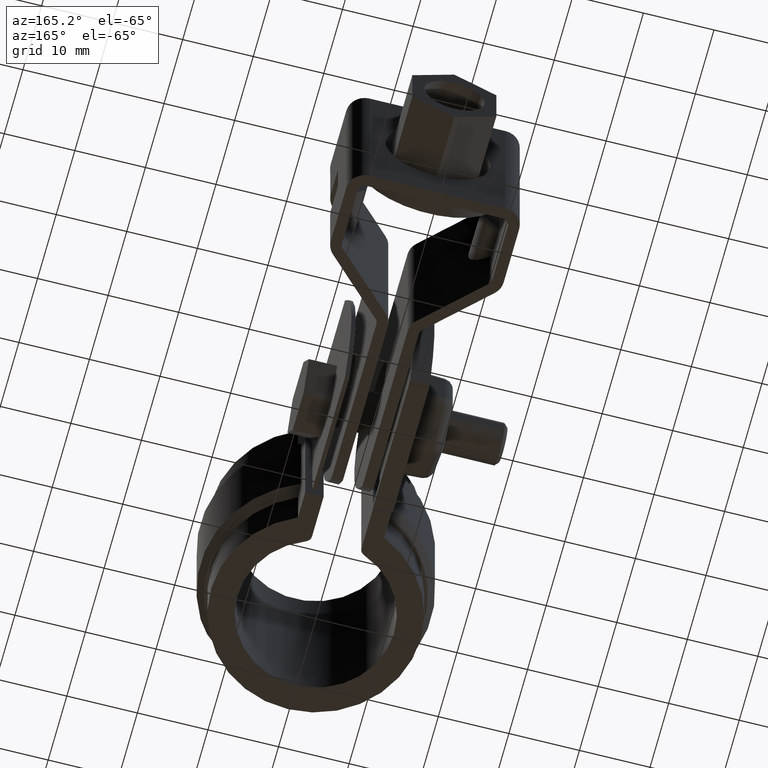
[diagram: clean part render]
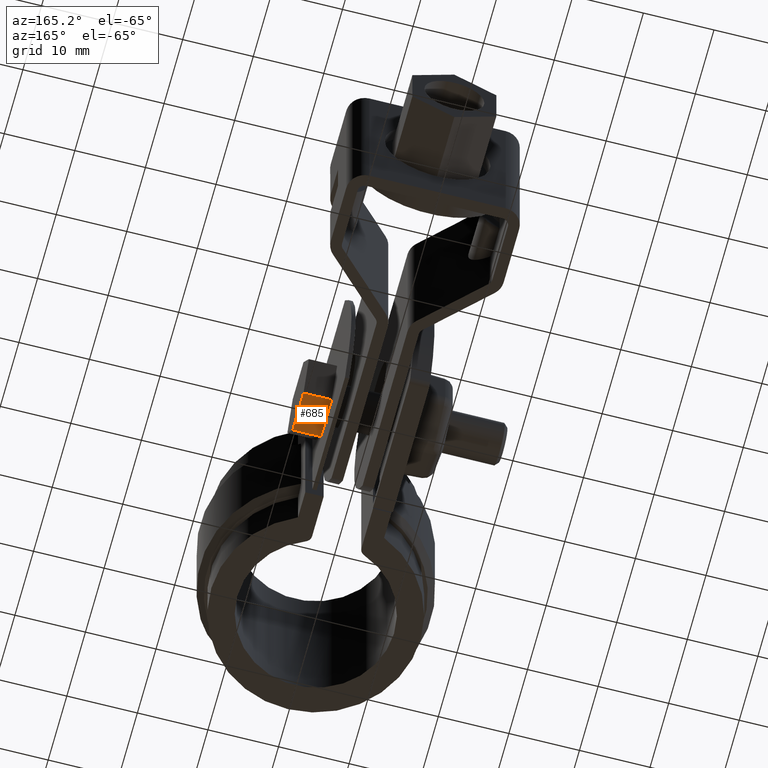
[diagram: same view with one face highlighted and labeled with its STEP entity id]
A machine part, auxiliary view. The second image highlights one B-rep face of the part: STEP entity #685.
In plain terms, the highlighted planar face has unit normal (0, -0, 1).
Its self-contained STEP definition (entity closure, byte-faithful):
#685 = ADVANCED_FACE( '', ( #1382 ), #1383, .F. );
#1382 = FACE_OUTER_BOUND( '', #2598, .T. );
#1383 = PLANE( '', #2599 );
#2598 = EDGE_LOOP( '', ( #6266, #6267, #6268, #6269 ) );
#2599 = AXIS2_PLACEMENT_3D( '', #6270, #6271, #6272 );
#6266 = ORIENTED_EDGE( '', *, *, #7188, .T. );
#6267 = ORIENTED_EDGE( '', *, *, #7187, .F. );
#6268 = ORIENTED_EDGE( '', *, *, #7200, .F. );
#6269 = ORIENTED_EDGE( '', *, *, #7201, .T. );
#6270 = CARTESIAN_POINT( '', ( 9.10000000000000, 22.0712633162872, -17.5000000000000 ) );
#6271 = DIRECTION( '', ( 0.000000000000000, -5.55111512312578E-017, 1.00000000000000 ) );
#6272 = DIRECTION( '', ( 0.000000000000000, -1.00000000000000, -5.55111512312578E-017 ) );
#7187 = EDGE_CURVE( '', #8691, #8686, #8693, .T. );
#7188 = EDGE_CURVE( '', #8694, #8686, #8695, .T. );
#7200 = EDGE_CURVE( '', #8714, #8691, #8716, .T. );
#7201 = EDGE_CURVE( '', #8714, #8694, #8717, .T. );
#8686 = VERTEX_POINT( '', #12237 );
#8691 = VERTEX_POINT( '', #12244 );
#8693 = LINE( '', #12247, #12248 );
#8694 = VERTEX_POINT( '', #12249 );
#8695 = LINE( '', #12250, #12251 );
#8714 = VERTEX_POINT( '', #12278 );
#8716 = LINE( '', #12281, #12282 );
#8717 = LINE( '', #12283, #12284 );
#12237 = CARTESIAN_POINT( '', ( 5.10000000000000, 27.8447660081834, -17.5000000000000 ) );
#12244 = CARTESIAN_POINT( '', ( 9.10000000000000, 27.8447660081834, -17.5000000000000 ) );
#12247 = CARTESIAN_POINT( '', ( 9.10000000000000, 27.8447660081834, -17.5000000000000 ) );
#12248 = VECTOR( '', #13479, 1000.00000000000 );
#12249 = CARTESIAN_POINT( '', ( 5.10000000000000, 22.0712633162872, -17.5000000000000 ) );
#12250 = CARTESIAN_POINT( '', ( 5.10000000000000, 22.0712633162872, -17.5000000000000 ) );
#12251 = VECTOR( '', #13480, 1000.00000000000 );
#12278 = CARTESIAN_POINT( '', ( 9.10000000000000, 22.0712633162872, -17.5000000000000 ) );
#12281 = CARTESIAN_POINT( '', ( 9.10000000000000, 22.0712633162872, -17.5000000000000 ) );
#12282 = VECTOR( '', #13496, 1000.00000000000 );
#12283 = CARTESIAN_POINT( '', ( 9.10000000000000, 22.0712633162872, -17.5000000000000 ) );
#12284 = VECTOR( '', #13497, 1000.00000000000 );
#13479 = DIRECTION( '', ( -1.00000000000000, 0.000000000000000, 0.000000000000000 ) );
#13480 = DIRECTION( '', ( 0.000000000000000, 1.00000000000000, 5.55111512312578E-017 ) );
#13496 = DIRECTION( '', ( 0.000000000000000, 1.00000000000000, 5.55111512312578E-017 ) );
#13497 = DIRECTION( '', ( -1.00000000000000, 0.000000000000000, 0.000000000000000 ) );